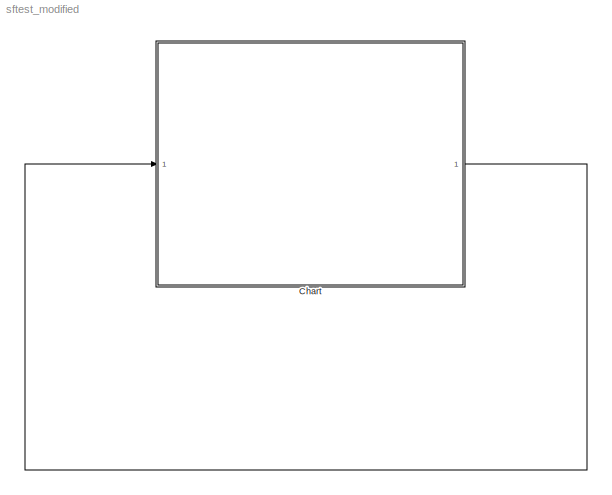
MODEL sftest_modified
KIND model
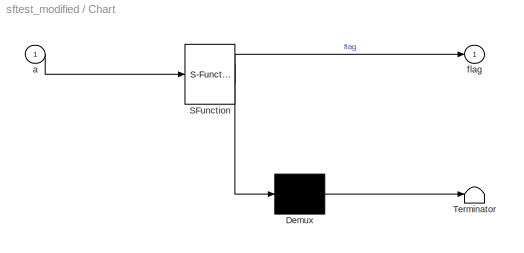
BLOCK [SubSystem] Chart
  ErrorFcn = Stateflow.Translate.translate
  PermitHierarchicalResolution = ExplicitOnly
  Ports = [1, 1]
  RequestExecContextInheritance = off
  SFBlockType = Chart
  SID = 1
  TreatAsAtomicUnit = on
BLOCK [Demux] Chart/ Demux 
  Outputs = 1
  Ports = [1, 1]
  SID = 1::90
BLOCK [S-Function] Chart/ SFunction 
  EnableBusSupport = off
  FunctionName = sf_sfun
  PortCounts = [1 2]
  Ports = [1, 2]
  SFcnIsStateOwnerBlock = off
  SFunctionDeploymentMode = off
  SID = 1::89
  Tag = Stateflow S-Function sftest_modified 3
BLOCK [Terminator] Chart/ Terminator 
  SID = 1::91
BLOCK [Inport] Chart/a
  IconDisplay = Port number
  SID = 1::81
BLOCK [Outport] Chart/flag
  IconDisplay = Port number
  SID = 1::85
LINE Chart/ Demux :1 -> Chart/ Terminator :1
LINE Chart/ SFunction :1 -> Chart/ Demux :1
LINE Chart/ SFunction :2 -> Chart/flag:1
LINE Chart/a:1 -> Chart/ SFunction :1
LINE Chart:1 -> Chart:1
CHART Chart states=2 transitions=3
  STATE_LABEL 'On\\nentry:flag=0;'
  STATE_LABEL 'Off\\nentry:flag=1;'
